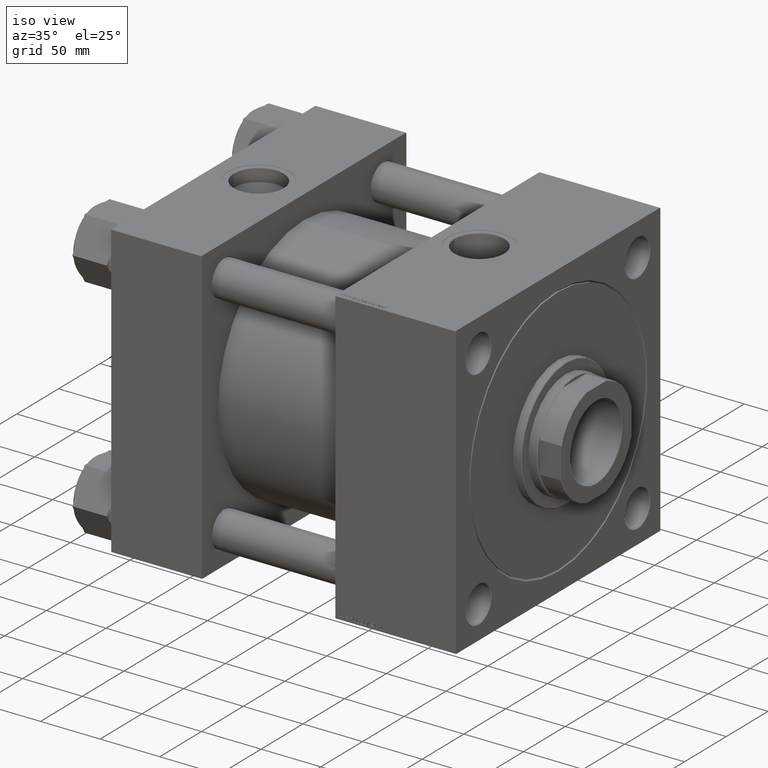
[diagram: clean part render]
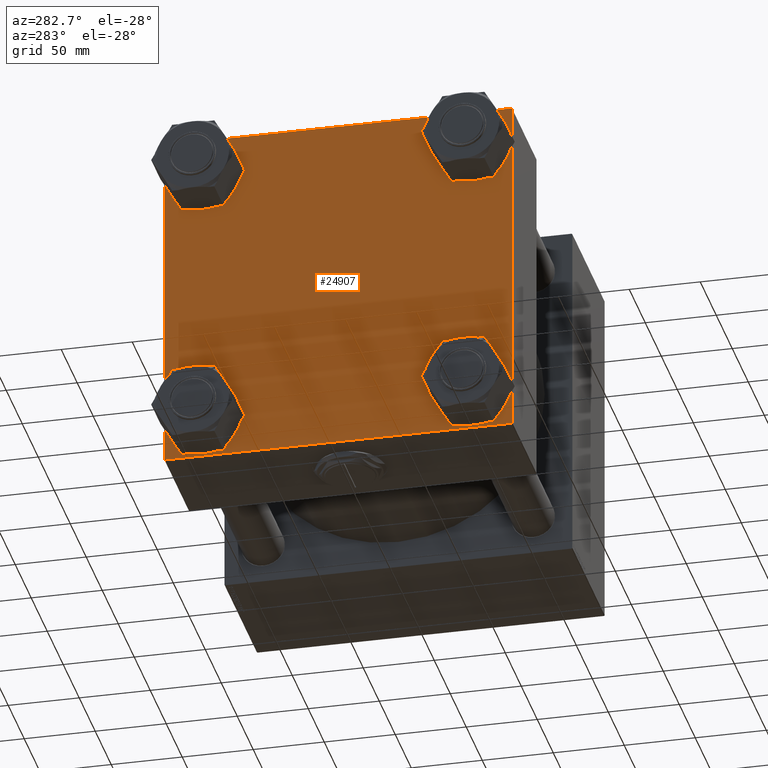
[diagram: tour spotlight — one face highlighted and labeled with its STEP entity id]
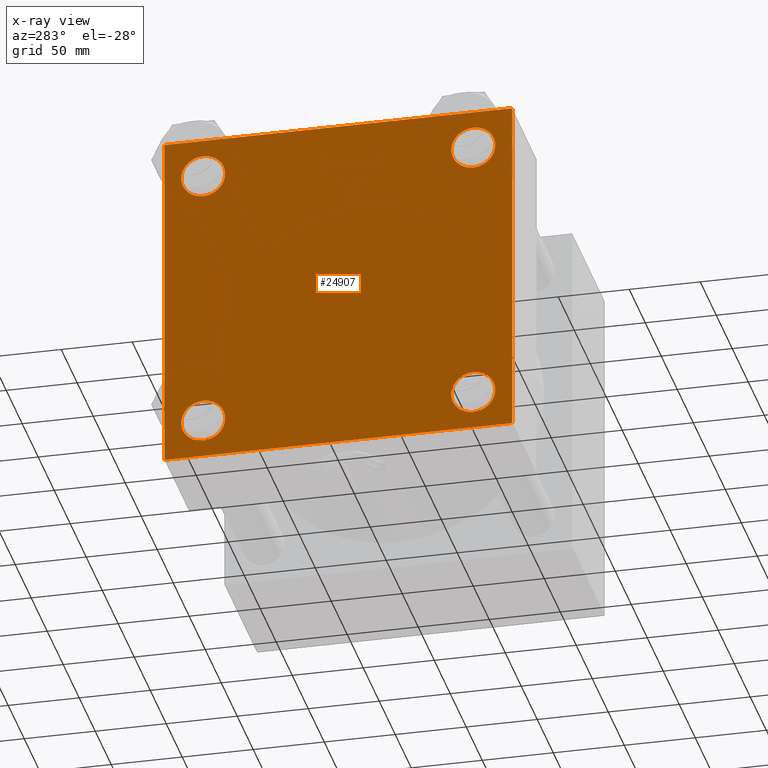
[diagram: x-ray of the same camera — body ghosted, this tour face saturated]
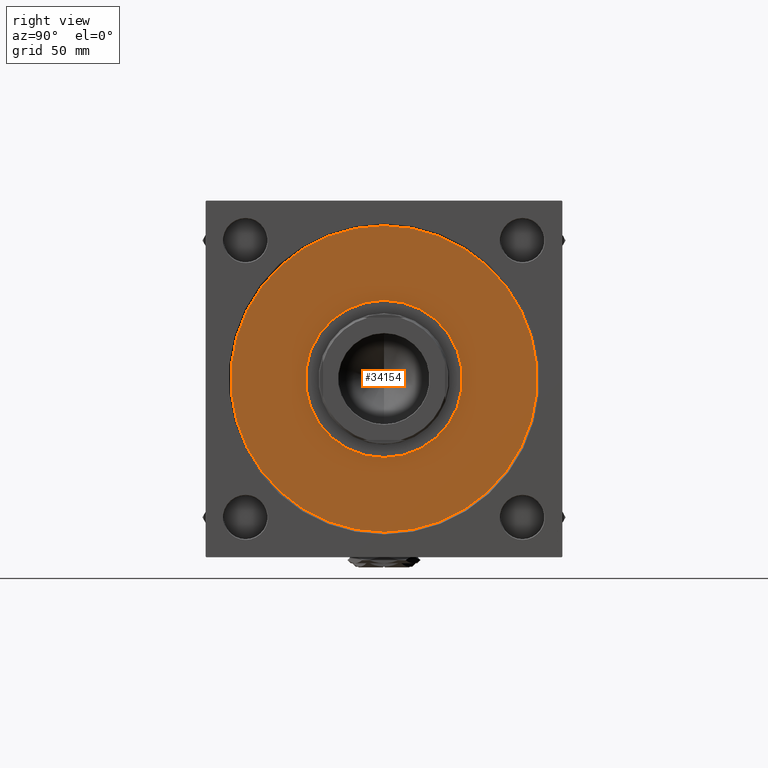
[diagram: tour spotlight — one face highlighted and labeled with its STEP entity id]
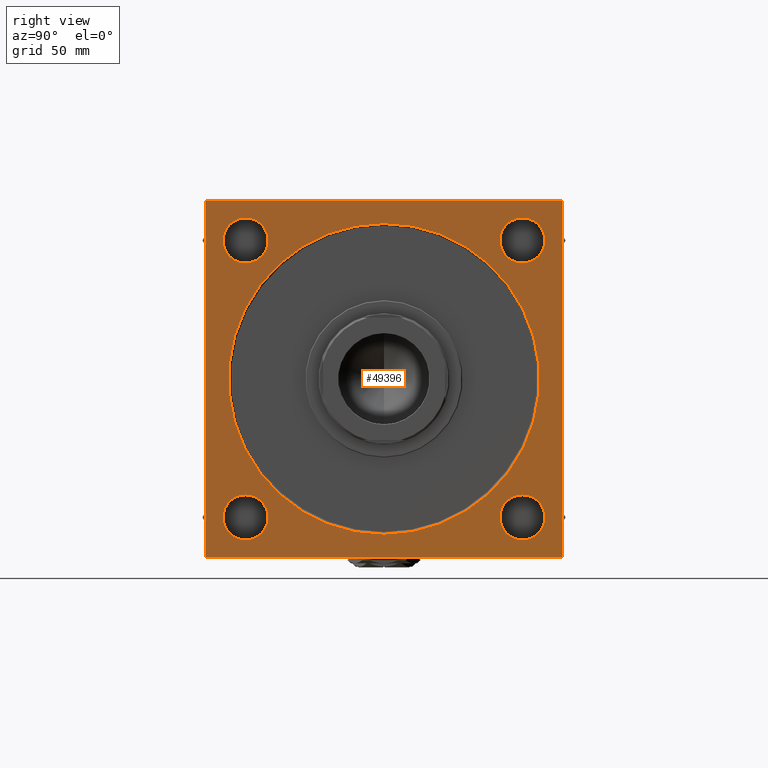
[diagram: tour spotlight — one face highlighted and labeled with its STEP entity id]
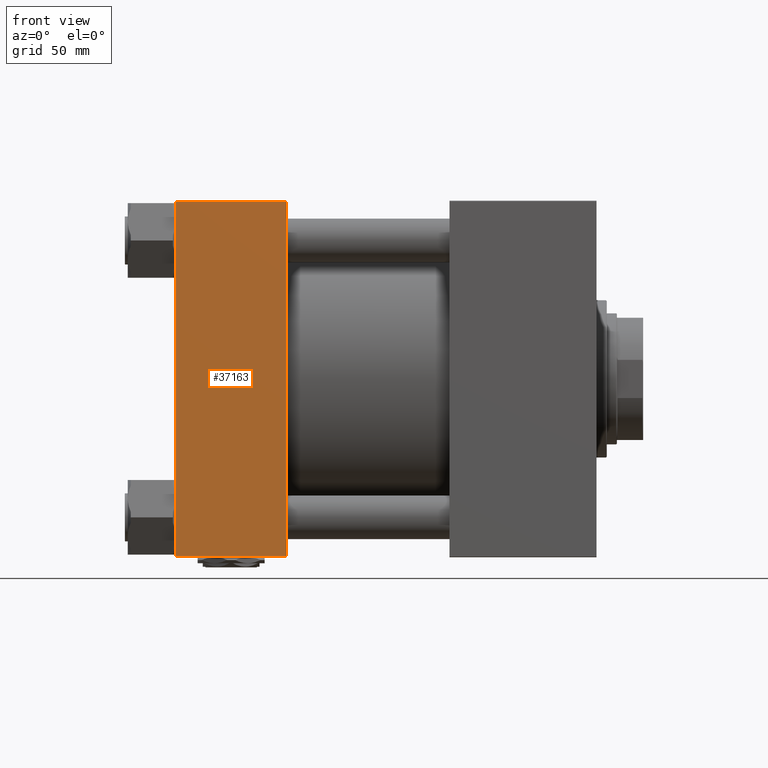
[diagram: tour spotlight — one face highlighted and labeled with its STEP entity id]
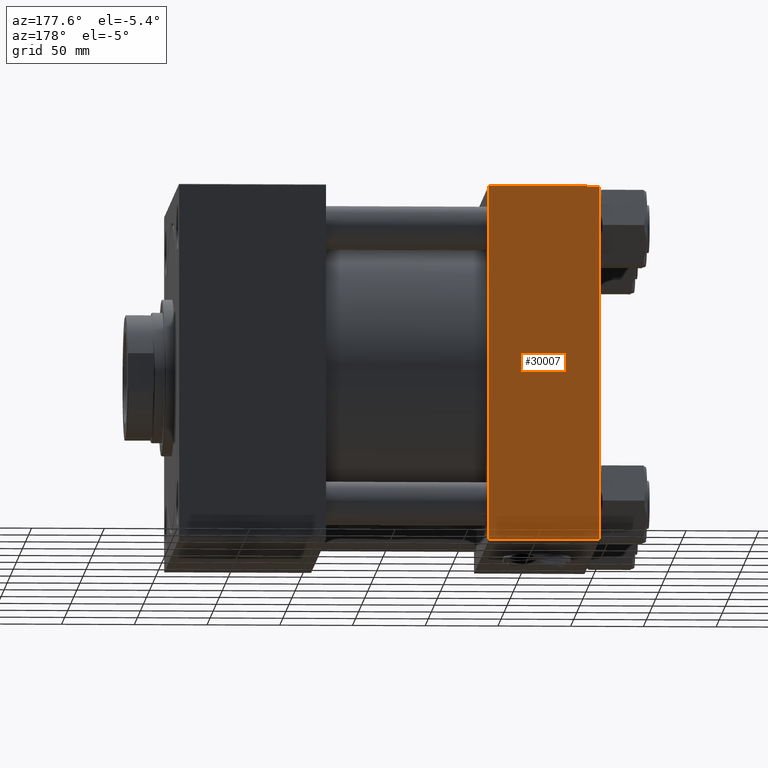
[diagram: tour spotlight — one face highlighted and labeled with its STEP entity id]
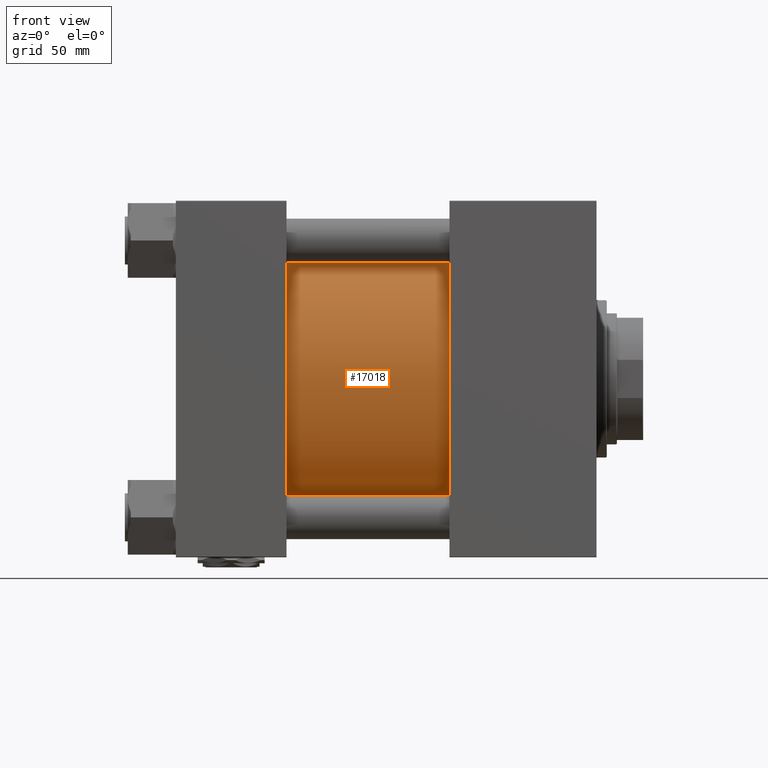
[diagram: tour spotlight — one face highlighted and labeled with its STEP entity id]
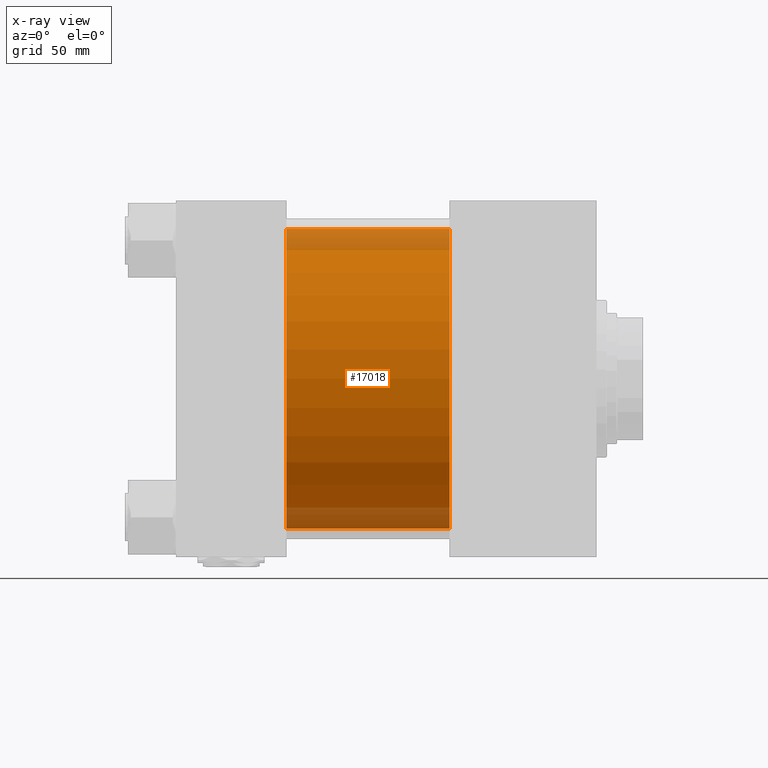
[diagram: x-ray of the same camera — body ghosted, this tour face saturated]
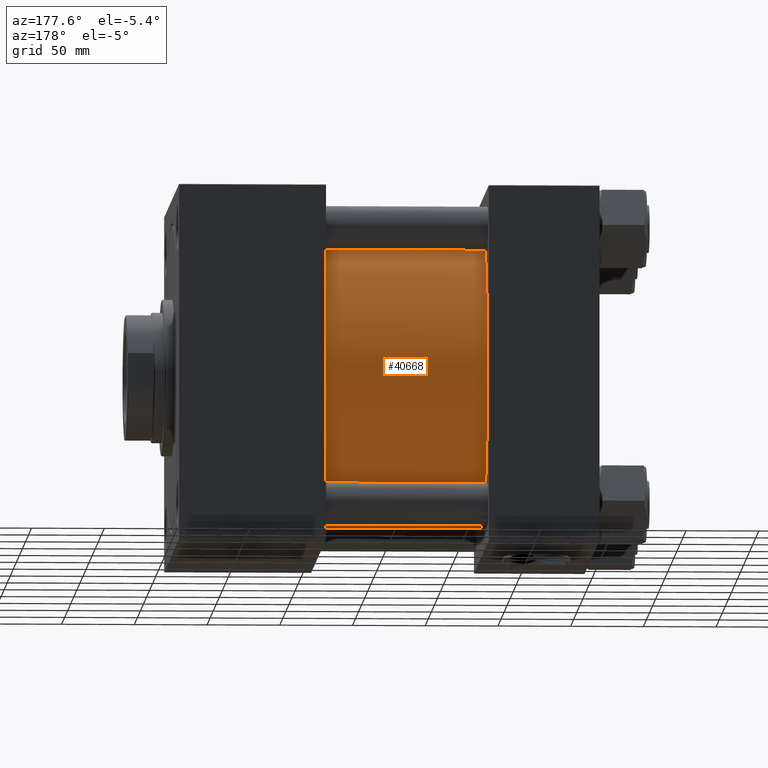
[diagram: tour spotlight — one face highlighted and labeled with its STEP entity id]
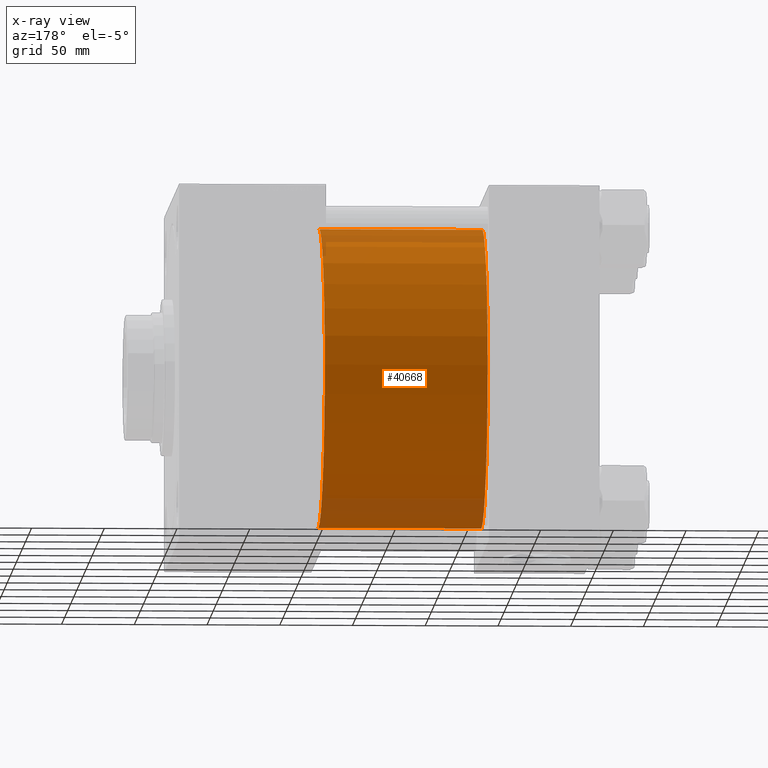
[diagram: x-ray of the same camera — body ghosted, this tour face saturated]
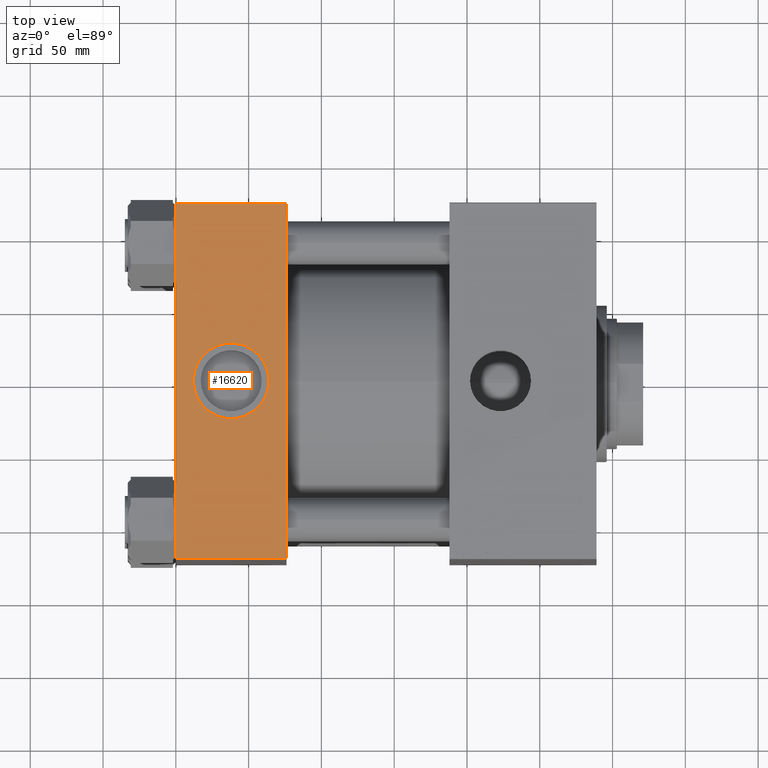
[diagram: tour spotlight — one face highlighted and labeled with its STEP entity id]
A machine part: a face-by-face anatomy tour. The part has 1250 B-rep faces; the first image is the clean iso view, then the 8 largest visible faces are spotlighted one at a time (largest first), each with its STEP entity span.

Face 1 — auxiliary view, entity #24907. An x-ray twin of the same camera follows (body ghosted, this face saturated) — the face is partly hidden behind the body. In plain terms, the highlighted planar face has unit normal (-1, 0, 0).
Definition (entity closure, byte-faithful):
#144 = CARTESIAN_POINT ( 'NONE',  ( 0.000000000000000000, 122.2500000000000000, 122.2500000000000000 ) ) ;
#779 = ORIENTED_EDGE ( 'NONE', *, *, #37102, .T. ) ;
#1491 = ORIENTED_EDGE ( 'NONE', *, *, #38173, .F. ) ;
#1576 = DIRECTION ( 'NONE',  ( 0.000000000000000000, 0.000000000000000000, 1.000000000000000000 ) ) ;
#2879 = VERTEX_POINT ( 'NONE', #37481 ) ;
#3141 = CARTESIAN_POINT ( 'NONE',  ( 0.000000000000000000, 122.2500000000067217, -122.2499999999931646 ) ) ;
#3627 = DIRECTION ( 'NONE',  ( 0.000000000000000000, 0.000000000000000000, 1.000000000000000000 ) ) ;
#3774 = ORIENTED_EDGE ( 'NONE', *, *, #25848, .T. ) ;
#4180 = PLANE ( 'NONE',  #47373 ) ;
#4560 = VERTEX_POINT ( 'NONE', #34816 ) ;
#4984 = VECTOR ( 'NONE', #41267, 999.9999999999998863 ) ;
#5258 = VERTEX_POINT ( 'NONE', #39675 ) ;
#5498 = CIRCLE ( 'NONE', #47961, 15.50000000000001421 ) ;
#5548 = CARTESIAN_POINT ( 'NONE',  ( 0.000000000000000000, -95.09999999999996589, -95.10000000000000853 ) ) ;
#5682 = ORIENTED_EDGE ( 'NONE', *, *, #36553, .T. ) ;
#5817 = VERTEX_POINT ( 'NONE', #10591 ) ;
#6185 = CARTESIAN_POINT ( 'NONE',  ( 0.000000000000000000, 122.5000000000000142, 122.5000000000000284 ) ) ;
#7110 = DIRECTION ( 'NONE',  ( -0.000000000000000000, -0.7071067811865081598, -0.7071067811865867636 ) ) ;
#7118 = VERTEX_POINT ( 'NONE', #17409 ) ;
#7381 = CARTESIAN_POINT ( 'NONE',  ( 0.000000000000000000, 95.09999999999999432, -79.59999999999996589 ) ) ;
#7396 = CARTESIAN_POINT ( 'NONE',  ( 0.000000000000000000, 95.09999999999999432, -95.09999999999998010 ) ) ;
#7906 = VERTEX_POINT ( 'NONE', #34477 ) ;
#7966 = EDGE_CURVE ( 'NONE', #7906, #32639, #34753, .T. ) ;
#8942 = EDGE_CURVE ( 'NONE', #5258, #36256, #19063, .T. ) ;
#9895 = AXIS2_PLACEMENT_3D ( 'NONE', #17594, #17854, #33286 ) ;
#10029 = CARTESIAN_POINT ( 'NONE',  ( 0.000000000000000000, -122.5000000000000000, -121.9999999999999289 ) ) ;
#10317 = DIRECTION ( 'NONE',  ( 1.000000000000000000, -0.000000000000000000, 0.000000000000000000 ) ) ;
#10424 = CIRCLE ( 'NONE', #35910, 15.50000000000001421 ) ;
#10591 = CARTESIAN_POINT ( 'NONE',  ( 0.000000000000000000, -95.09999999999996589, 79.59999999999999432 ) ) ;
#11378 = LINE ( 'NONE', #27060, #42810 ) ;
#11628 = FACE_OUTER_BOUND ( 'NONE', #39082, .T. ) ;
#12540 = VERTEX_POINT ( 'NONE', #30777 ) ;
#12545 = AXIS2_PLACEMENT_3D ( 'NONE', #37088, #16637, #3627 ) ;
#12878 = DIRECTION ( 'NONE',  ( 0.000000000000000000, 0.7071067811865474617, -0.7071067811865474617 ) ) ;
#13157 = CARTESIAN_POINT ( 'NONE',  ( 0.000000000000000000, -122.5000000000000000, 121.9999999999999858 ) ) ;
#13881 = EDGE_LOOP ( 'NONE', ( #19728, #50750 ) ) ;
#14192 = EDGE_CURVE ( 'NONE', #31408, #2879, #29246, .T. ) ;
#14806 = AXIS2_PLACEMENT_3D ( 'NONE', #31766, #31233, #47975 ) ;
#15661 = AXIS2_PLACEMENT_3D ( 'NONE', #27381, #31374, #39332 ) ;
#15874 = DIRECTION ( 'NONE',  ( -0.000000000000000000, 0.000000000000000000, 1.000000000000000000 ) ) ;
#15921 = CIRCLE ( 'NONE', #12545, 15.50000000000001421 ) ;
#16209 = VERTEX_POINT ( 'NONE', #49629 ) ;
#16345 = DIRECTION ( 'NONE',  ( 0.000000000000000000, -1.000000000000000000, -1.132880637372608740E-16 ) ) ;
#16604 = CARTESIAN_POINT ( 'NONE',  ( 0.000000000000000000, 95.09999999999999432, 110.5999999999999943 ) ) ;
#16606 = LINE ( 'NONE', #25348, #35132 ) ;
#16637 = DIRECTION ( 'NONE',  ( 1.000000000000000000, -0.000000000000000000, 0.000000000000000000 ) ) ;
#17409 = CARTESIAN_POINT ( 'NONE',  ( 0.000000000000000000, -95.09999999999996589, 110.6000000000000227 ) ) ;
#17594 = CARTESIAN_POINT ( 'NONE',  ( 0.000000000000000000, 95.09999999999999432, 95.09999999999998010 ) ) ;
#17854 = DIRECTION ( 'NONE',  ( 1.000000000000000000, -0.000000000000000000, 0.000000000000000000 ) ) ;
#17975 = ORIENTED_EDGE ( 'NONE', *, *, #14192, .T. ) ;
#19063 = CIRCLE ( 'NONE', #15661, 15.50000000000001421 ) ;
#19678 = EDGE_CURVE ( 'NONE', #7118, #5817, #15921, .T. ) ;
#19728 = ORIENTED_EDGE ( 'NONE', *, *, #19678, .T. ) ;
#20303 = ORIENTED_EDGE ( 'NONE', *, *, #23175, .T. ) ;
#21351 = CARTESIAN_POINT ( 'NONE',  ( -0.000000000000000000, -122.2499999999982947, 122.2500000000016911 ) ) ;
#21736 = VECTOR ( 'NONE', #22396, 1000.000000000000000 ) ;
#22028 = CARTESIAN_POINT ( 'NONE',  ( 0.000000000000000000, -95.09999999999996589, -79.59999999999999432 ) ) ;
#22295 = EDGE_LOOP ( 'NONE', ( #17975, #22941 ) ) ;
#22396 = DIRECTION ( 'NONE',  ( 0.000000000000000000, -1.000000000000000000, -1.699320956058913233E-16 ) ) ;
#22418 = VECTOR ( 'NONE', #12878, 1000.000000000000114 ) ;
#22941 = ORIENTED_EDGE ( 'NONE', *, *, #42724, .T. ) ;
#23175 = EDGE_CURVE ( 'NONE', #46281, #4560, #25583, .T. ) ;
#23775 = VERTEX_POINT ( 'NONE', #28409 ) ;
#24146 = VECTOR ( 'NONE', #48372, 1000.000000000000000 ) ;
#24368 = FACE_BOUND ( 'NONE', #31967, .T. ) ;
#24907 = ADVANCED_FACE ( 'NONE', ( #43762, #24368, #44547, #39789, #11628 ), #4180, .T. ) ;
#25348 = CARTESIAN_POINT ( 'NONE',  ( 0.000000000000000000, 122.5000000000000142, -122.4999999999999716 ) ) ;
#25583 = LINE ( 'NONE', #21351, #4984 ) ;
#25746 = ORIENTED_EDGE ( 'NONE', *, *, #26664, .T. ) ;
#25848 = EDGE_CURVE ( 'NONE', #36256, #5258, #42273, .T. ) ;
#26515 = DIRECTION ( 'NONE',  ( 0.000000000000000000, 0.000000000000000000, 1.000000000000000000 ) ) ;
#26664 = EDGE_CURVE ( 'NONE', #23775, #38062, #43164, .T. ) ;
#26792 = DIRECTION ( 'NONE',  ( 1.000000000000000000, -0.000000000000000000, 0.000000000000000000 ) ) ;
#27060 = CARTESIAN_POINT ( 'NONE',  ( 0.000000000000000000, -122.5000000000000000, 122.4999999999999858 ) ) ;
#27381 = CARTESIAN_POINT ( 'NONE',  ( 0.000000000000000000, 95.09999999999999432, -95.09999999999998010 ) ) ;
#27393 = EDGE_LOOP ( 'NONE', ( #3774, #41386 ) ) ;
#27916 = LINE ( 'NONE', #41161, #24146 ) ;
#28356 = VECTOR ( 'NONE', #7110, 1000.000000000000000 ) ;
#28409 = CARTESIAN_POINT ( 'NONE',  ( 0.000000000000000000, -95.09999999999996589, -110.6000000000000227 ) ) ;
#28648 = ORIENTED_EDGE ( 'NONE', *, *, #33246, .T. ) ;
#28933 = VERTEX_POINT ( 'NONE', #47500 ) ;
#29246 = CIRCLE ( 'NONE', #14806, 15.50000000000001421 ) ;
#30506 = CARTESIAN_POINT ( 'NONE',  ( 0.000000000000000000, -95.09999999999996589, -95.10000000000000853 ) ) ;
#30777 = CARTESIAN_POINT ( 'NONE',  ( 0.000000000000000000, 122.5000000000000142, 121.9999999999999716 ) ) ;
#30908 = VECTOR ( 'NONE', #51095, 1000.000000000000114 ) ;
#31233 = DIRECTION ( 'NONE',  ( 1.000000000000000000, -0.000000000000000000, 0.000000000000000000 ) ) ;
#31259 = AXIS2_PLACEMENT_3D ( 'NONE', #7396, #35831, #39536 ) ;
#31374 = DIRECTION ( 'NONE',  ( 1.000000000000000000, -0.000000000000000000, 0.000000000000000000 ) ) ;
#31408 = VERTEX_POINT ( 'NONE', #16604 ) ;
#31556 = DIRECTION ( 'NONE',  ( -1.000000000000000000, 0.000000000000000000, -0.000000000000000000 ) ) ;
#31766 = CARTESIAN_POINT ( 'NONE',  ( 0.000000000000000000, 95.09999999999999432, 95.09999999999998010 ) ) ;
#31967 = EDGE_LOOP ( 'NONE', ( #28648, #25746 ) ) ;
#32565 = CARTESIAN_POINT ( 'NONE',  ( 0.000000000000000000, -95.09999999999996589, 95.10000000000000853 ) ) ;
#32639 = VERTEX_POINT ( 'NONE', #39396 ) ;
#33246 = EDGE_CURVE ( 'NONE', #38062, #23775, #10424, .T. ) ;
#33286 = DIRECTION ( 'NONE',  ( 0.000000000000000000, 0.000000000000000000, 1.000000000000000000 ) ) ;
#34444 = ORIENTED_EDGE ( 'NONE', *, *, #40738, .F. ) ;
#34477 = CARTESIAN_POINT ( 'NONE',  ( 0.000000000000000000, 122.5000000000000142, -121.9999999999998579 ) ) ;
#34508 = CIRCLE ( 'NONE', #9895, 15.50000000000001421 ) ;
#34753 = LINE ( 'NONE', #3141, #28356 ) ;
#34816 = CARTESIAN_POINT ( 'NONE',  ( 0.000000000000000000, -121.9999999999999858, 122.4999999999999858 ) ) ;
#35132 = VECTOR ( 'NONE', #16345, 1000.000000000000000 ) ;
#35831 = DIRECTION ( 'NONE',  ( 1.000000000000000000, -0.000000000000000000, 0.000000000000000000 ) ) ;
#35910 = AXIS2_PLACEMENT_3D ( 'NONE', #30506, #10317, #26515 ) ;
#36256 = VERTEX_POINT ( 'NONE', #7381 ) ;
#36541 = EDGE_CURVE ( 'NONE', #32639, #16209, #16606, .T. ) ;
#36553 = EDGE_CURVE ( 'NONE', #28933, #12540, #45526, .T. ) ;
#36788 = EDGE_CURVE ( 'NONE', #16209, #39067, #39659, .T. ) ;
#36800 = ORIENTED_EDGE ( 'NONE', *, *, #36788, .T. ) ;
#37088 = CARTESIAN_POINT ( 'NONE',  ( 0.000000000000000000, -95.09999999999996589, 95.10000000000000853 ) ) ;
#37102 = EDGE_CURVE ( 'NONE', #12540, #7906, #27916, .T. ) ;
#37481 = CARTESIAN_POINT ( 'NONE',  ( 0.000000000000000000, 95.09999999999999432, 79.59999999999996589 ) ) ;
#38062 = VERTEX_POINT ( 'NONE', #22028 ) ;
#38173 = EDGE_CURVE ( 'NONE', #46281, #39067, #11378, .T. ) ;
#38436 = EDGE_CURVE ( 'NONE', #5817, #7118, #5498, .T. ) ;
#39014 = DIRECTION ( 'NONE',  ( 0.000000000000000000, 0.000000000000000000, -1.000000000000000000 ) ) ;
#39067 = VERTEX_POINT ( 'NONE', #10029 ) ;
#39082 = EDGE_LOOP ( 'NONE', ( #779, #48086, #43685, #36800, #1491, #20303, #34444, #5682 ) ) ;
#39332 = DIRECTION ( 'NONE',  ( 0.000000000000000000, 0.000000000000000000, 1.000000000000000000 ) ) ;
#39396 = CARTESIAN_POINT ( 'NONE',  ( 0.000000000000000000, 121.9999999999999574, -122.4999999999999716 ) ) ;
#39536 = DIRECTION ( 'NONE',  ( 0.000000000000000000, 0.000000000000000000, 1.000000000000000000 ) ) ;
#39659 = LINE ( 'NONE', #51903, #30908 ) ;
#39675 = CARTESIAN_POINT ( 'NONE',  ( 0.000000000000000000, 95.09999999999999432, -110.5999999999999943 ) ) ;
#39789 = FACE_BOUND ( 'NONE', #22295, .T. ) ;
#40014 = DIRECTION ( 'NONE',  ( 1.000000000000000000, -0.000000000000000000, 0.000000000000000000 ) ) ;
#40738 = EDGE_CURVE ( 'NONE', #28933, #4560, #42577, .T. ) ;
#41161 = CARTESIAN_POINT ( 'NONE',  ( 0.000000000000000000, 122.5000000000000142, 122.5000000000000284 ) ) ;
#41267 = DIRECTION ( 'NONE',  ( -0.000000000000000000, 0.7071067811865574537, 0.7071067811865376918 ) ) ;
#41386 = ORIENTED_EDGE ( 'NONE', *, *, #8942, .T. ) ;
#42273 = CIRCLE ( 'NONE', #31259, 15.50000000000001421 ) ;
#42577 = LINE ( 'NONE', #6185, #21736 ) ;
#42724 = EDGE_CURVE ( 'NONE', #2879, #31408, #34508, .T. ) ;
#42810 = VECTOR ( 'NONE', #39014, 1000.000000000000000 ) ;
#43164 = CIRCLE ( 'NONE', #47421, 15.50000000000001421 ) ;
#43685 = ORIENTED_EDGE ( 'NONE', *, *, #36541, .T. ) ;
#43762 = FACE_BOUND ( 'NONE', #13881, .T. ) ;
#44547 = FACE_BOUND ( 'NONE', #27393, .T. ) ;
#45043 = DIRECTION ( 'NONE',  ( 0.000000000000000000, 0.000000000000000000, 1.000000000000000000 ) ) ;
#45526 = LINE ( 'NONE', #144, #22418 ) ;
#46281 = VERTEX_POINT ( 'NONE', #13157 ) ;
#47373 = AXIS2_PLACEMENT_3D ( 'NONE', #51763, #31556, #15874 ) ;
#47421 = AXIS2_PLACEMENT_3D ( 'NONE', #5548, #26792, #1576 ) ;
#47500 = CARTESIAN_POINT ( 'NONE',  ( 0.000000000000000000, 121.9999999999999574, 122.5000000000000284 ) ) ;
#47961 = AXIS2_PLACEMENT_3D ( 'NONE', #32565, #40014, #45043 ) ;
#47975 = DIRECTION ( 'NONE',  ( 0.000000000000000000, 0.000000000000000000, 1.000000000000000000 ) ) ;
#48086 = ORIENTED_EDGE ( 'NONE', *, *, #7966, .T. ) ;
#48372 = DIRECTION ( 'NONE',  ( 0.000000000000000000, 0.000000000000000000, -1.000000000000000000 ) ) ;
#49629 = CARTESIAN_POINT ( 'NONE',  ( 0.000000000000000000, -121.9999999999999289, -122.5000000000000000 ) ) ;
#50750 = ORIENTED_EDGE ( 'NONE', *, *, #38436, .T. ) ;
#51095 = DIRECTION ( 'NONE',  ( 0.000000000000000000, -0.7071067811865474617, 0.7071067811865474617 ) ) ;
#51763 = CARTESIAN_POINT ( 'NONE',  ( 0.000000000000000000, 0.000000000000000000, 0.000000000000000000 ) ) ;
#51903 = CARTESIAN_POINT ( 'NONE',  ( 0.000000000000000000, -122.2499999999999574, -122.2499999999999574 ) ) ;

Face 2 — right view, entity #34154. In plain terms, the highlighted planar face has unit normal (1, 0, 0).
Definition (entity closure, byte-faithful):
#147 = DIRECTION ( 'NONE',  ( 1.000000000000000000, 0.000000000000000000, 0.000000000000000000 ) ) ;
#343 = DIRECTION ( 'NONE',  ( 1.000000000000000000, 0.000000000000000000, 0.000000000000000000 ) ) ;
#389 = FACE_OUTER_BOUND ( 'NONE', #7286, .T. ) ;
#1043 = CIRCLE ( 'NONE', #38382, 54.00000000000000000 ) ;
#2798 = AXIS2_PLACEMENT_3D ( 'NONE', #17108, #45007, #37305 ) ;
#3100 = CIRCLE ( 'NONE', #49786, 105.2499999999999858 ) ;
#3845 = DIRECTION ( 'NONE',  ( 1.000000000000000000, 0.000000000000000000, 0.000000000000000000 ) ) ;
#4145 = ORIENTED_EDGE ( 'NONE', *, *, #21521, .T. ) ;
#4950 = AXIS2_PLACEMENT_3D ( 'NONE', #42755, #35612, #6905 ) ;
#6905 = DIRECTION ( 'NONE',  ( 1.000000000000000000, 0.000000000000000000, 0.000000000000000000 ) ) ;
#7286 = EDGE_LOOP ( 'NONE', ( #4145, #24925 ) ) ;
#11502 = CARTESIAN_POINT ( 'NONE',  ( 0.000000000000000000, 0.000000000000000000, 28.69999999999999929 ) ) ;
#12375 = VERTEX_POINT ( 'NONE', #44648 ) ;
#12621 = CIRCLE ( 'NONE', #4950, 105.2499999999999858 ) ;
#13040 = VERTEX_POINT ( 'NONE', #42085 ) ;
#17108 = CARTESIAN_POINT ( 'NONE',  ( 0.000000000000000000, 0.000000000000000000, 28.69999999999999929 ) ) ;
#17656 = EDGE_CURVE ( 'NONE', #37275, #22125, #3100, .T. ) ;
#19525 = DIRECTION ( 'NONE',  ( 0.000000000000000000, 0.000000000000000000, 1.000000000000000000 ) ) ;
#21521 = EDGE_CURVE ( 'NONE', #22125, #37275, #12621, .T. ) ;
#22125 = VERTEX_POINT ( 'NONE', #38889 ) ;
#23731 = DIRECTION ( 'NONE',  ( 0.000000000000000000, 0.000000000000000000, 1.000000000000000000 ) ) ;
#24925 = ORIENTED_EDGE ( 'NONE', *, *, #17656, .T. ) ;
#25033 = ORIENTED_EDGE ( 'NONE', *, *, #40484, .F. ) ;
#28538 = CARTESIAN_POINT ( 'NONE',  ( 0.000000000000000000, 0.000000000000000000, 28.69999999999999929 ) ) ;
#28806 = PLANE ( 'NONE',  #2798 ) ;
#31030 = CARTESIAN_POINT ( 'NONE',  ( 105.2499999999999858, 1.288940756102589012E-14, 28.69999999999999929 ) ) ;
#31068 = CIRCLE ( 'NONE', #36172, 54.00000000000000000 ) ;
#32732 = EDGE_CURVE ( 'NONE', #12375, #13040, #1043, .T. ) ;
#34154 = ADVANCED_FACE ( 'NONE', ( #36527, #389 ), #28806, .T. ) ;
#35612 = DIRECTION ( 'NONE',  ( 0.000000000000000000, 0.000000000000000000, 1.000000000000000000 ) ) ;
#36172 = AXIS2_PLACEMENT_3D ( 'NONE', #39997, #36540, #147 ) ;
#36527 = FACE_BOUND ( 'NONE', #46217, .T. ) ;
#36540 = DIRECTION ( 'NONE',  ( 0.000000000000000000, 0.000000000000000000, 1.000000000000000000 ) ) ;
#37275 = VERTEX_POINT ( 'NONE', #31030 ) ;
#37305 = DIRECTION ( 'NONE',  ( 1.000000000000000000, 0.000000000000000000, -0.000000000000000000 ) ) ;
#38382 = AXIS2_PLACEMENT_3D ( 'NONE', #11502, #23731, #343 ) ;
#38889 = CARTESIAN_POINT ( 'NONE',  ( -105.2499999999999858, 0.000000000000000000, 28.69999999999999929 ) ) ;
#39997 = CARTESIAN_POINT ( 'NONE',  ( 0.000000000000000000, 0.000000000000000000, 28.69999999999999929 ) ) ;
#40484 = EDGE_CURVE ( 'NONE', #13040, #12375, #31068, .T. ) ;
#42085 = CARTESIAN_POINT ( 'NONE',  ( -54.00000000000000000, 0.000000000000000000, 28.69999999999999929 ) ) ;
#42755 = CARTESIAN_POINT ( 'NONE',  ( 0.000000000000000000, 0.000000000000000000, 28.69999999999999929 ) ) ;
#44648 = CARTESIAN_POINT ( 'NONE',  ( 54.00000000000000000, 6.613092715395707467E-15, 28.69999999999999929 ) ) ;
#44793 = ORIENTED_EDGE ( 'NONE', *, *, #32732, .F. ) ;
#45007 = DIRECTION ( 'NONE',  ( 0.000000000000000000, 0.000000000000000000, 1.000000000000000000 ) ) ;
#46217 = EDGE_LOOP ( 'NONE', ( #25033, #44793 ) ) ;
#49786 = AXIS2_PLACEMENT_3D ( 'NONE', #28538, #19525, #3845 ) ;

Face 3 — right view, entity #49396. In plain terms, the highlighted planar face has unit normal (-1, 0, 0).
Definition (entity closure, byte-faithful):
#207 = VERTEX_POINT ( 'NONE', #2353 ) ;
#451 = AXIS2_PLACEMENT_3D ( 'NONE', #9265, #38196, #37936 ) ;
#751 = CIRCLE ( 'NONE', #41430, 106.7500000000000000 ) ;
#1204 = VERTEX_POINT ( 'NONE', #40087 ) ;
#1475 = CARTESIAN_POINT ( 'NONE',  ( 289.0000000000000568, 95.09999999999999432, -95.09999999999998010 ) ) ;
#1503 = EDGE_CURVE ( 'NONE', #11802, #38972, #751, .T. ) ;
#1733 = DIRECTION ( 'NONE',  ( -1.000000000000000000, 0.000000000000000000, 0.000000000000000000 ) ) ;
#1763 = VERTEX_POINT ( 'NONE', #30061 ) ;
#1794 = DIRECTION ( 'NONE',  ( 0.000000000000000000, 0.000000000000000000, 1.000000000000000000 ) ) ;
#1967 = DIRECTION ( 'NONE',  ( -1.000000000000000000, 0.000000000000000000, 0.000000000000000000 ) ) ;
#2353 = CARTESIAN_POINT ( 'NONE',  ( 289.0000000000000568, 95.09999999999999432, 79.59999999999985221 ) ) ;
#2457 = CARTESIAN_POINT ( 'NONE',  ( 289.0000000000000568, -122.0000000000000568, 122.4999999999999858 ) ) ;
#2691 = VERTEX_POINT ( 'NONE', #2457 ) ;
#2703 = DIRECTION ( 'NONE',  ( 0.000000000000000000, 0.000000000000000000, 1.000000000000000000 ) ) ;
#2792 = VERTEX_POINT ( 'NONE', #44152 ) ;
#3081 = VERTEX_POINT ( 'NONE', #39048 ) ;
#3247 = AXIS2_PLACEMENT_3D ( 'NONE', #30599, #35119, #10947 ) ;
#3309 = ORIENTED_EDGE ( 'NONE', *, *, #20065, .T. ) ;
#3516 = FACE_BOUND ( 'NONE', #11654, .T. ) ;
#3957 = DIRECTION ( 'NONE',  ( 0.000000000000000000, -1.000000000000000000, -1.132880637372608986E-16 ) ) ;
#4017 = EDGE_LOOP ( 'NONE', ( #5996, #13851, #48843, #36960, #36097, #9809, #27651, #22735 ) ) ;
#4386 = CARTESIAN_POINT ( 'NONE',  ( 289.0000000000000568, -122.0000000000000000, -122.5000000000000853 ) ) ;
#4417 = CARTESIAN_POINT ( 'NONE',  ( 289.0000000000000568, -95.09999999999998010, -79.59999999999985221 ) ) ;
#5013 = DIRECTION ( 'NONE',  ( -1.000000000000000000, 0.000000000000000000, 0.000000000000000000 ) ) ;
#5278 = DIRECTION ( 'NONE',  ( 0.000000000000000000, 0.000000000000000000, 1.000000000000000000 ) ) ;
#5754 = VECTOR ( 'NONE', #45500, 1000.000000000000000 ) ;
#5996 = ORIENTED_EDGE ( 'NONE', *, *, #19401, .T. ) ;
#6068 = ORIENTED_EDGE ( 'NONE', *, *, #18378, .T. ) ;
#6183 = DIRECTION ( 'NONE',  ( 0.000000000000000000, -1.000000000000000000, -3.398641912117826466E-16 ) ) ;
#6274 = CARTESIAN_POINT ( 'NONE',  ( 289.0000000000000568, 121.9999999999999716, 122.5000000000000142 ) ) ;
#6483 = EDGE_CURVE ( 'NONE', #39580, #20009, #42671, .T. ) ;
#6568 = VECTOR ( 'NONE', #7481, 1000.000000000000000 ) ;
#6684 = CARTESIAN_POINT ( 'NONE',  ( 289.0000000000000568, -95.09999999999996589, 95.10000000000000853 ) ) ;
#6753 = EDGE_CURVE ( 'NONE', #14640, #2691, #27877, .T. ) ;
#7481 = DIRECTION ( 'NONE',  ( 0.000000000000000000, -5.664403186863042467E-17, -1.000000000000000000 ) ) ;
#7751 = LINE ( 'NONE', #19447, #6568 ) ;
#7835 = AXIS2_PLACEMENT_3D ( 'NONE', #50247, #25031, #9084 ) ;
#8047 = CARTESIAN_POINT ( 'NONE',  ( 289.0000000000000568, 121.9999999999999716, 122.5000000000000142 ) ) ;
#8098 = CIRCLE ( 'NONE', #451, 15.50000000000012434 ) ;
#8405 = ORIENTED_EDGE ( 'NONE', *, *, #34459, .T. ) ;
#8620 = EDGE_CURVE ( 'NONE', #3081, #36633, #30883, .T. ) ;
#9084 = DIRECTION ( 'NONE',  ( 0.000000000000000000, 0.000000000000000000, 1.000000000000000000 ) ) ;
#9265 = CARTESIAN_POINT ( 'NONE',  ( 289.0000000000000568, -95.09999999999996589, 95.10000000000000853 ) ) ;
#9285 = EDGE_LOOP ( 'NONE', ( #49045, #51487 ) ) ;
#9506 = DIRECTION ( 'NONE',  ( 0.000000000000000000, 0.000000000000000000, 1.000000000000000000 ) ) ;
#9623 = LINE ( 'NONE', #25578, #5754 ) ;
#9758 = CARTESIAN_POINT ( 'NONE',  ( 289.0000000000000568, 95.09999999999999432, -95.09999999999998010 ) ) ;
#9809 = ORIENTED_EDGE ( 'NONE', *, *, #48311, .T. ) ;
#9965 = CIRCLE ( 'NONE', #25152, 15.50000000000012434 ) ;
#10196 = VECTOR ( 'NONE', #15562, 1000.000000000000114 ) ;
#10253 = DIRECTION ( 'NONE',  ( 0.000000000000000000, 0.7071067811865671127, -0.7071067811865279218 ) ) ;
#10671 = VERTEX_POINT ( 'NONE', #45280 ) ;
#10947 = DIRECTION ( 'NONE',  ( 0.000000000000000000, 0.000000000000000000, 1.000000000000000000 ) ) ;
#11303 = LINE ( 'NONE', #43183, #10196 ) ;
#11654 = EDGE_LOOP ( 'NONE', ( #17362, #42388 ) ) ;
#11746 = CIRCLE ( 'NONE', #41424, 15.50000000000012434 ) ;
#11802 = VERTEX_POINT ( 'NONE', #21440 ) ;
#13851 = ORIENTED_EDGE ( 'NONE', *, *, #26070, .T. ) ;
#13942 = ORIENTED_EDGE ( 'NONE', *, *, #38895, .T. ) ;
#14180 = VERTEX_POINT ( 'NONE', #51972 ) ;
#14402 = FACE_BOUND ( 'NONE', #20442, .T. ) ;
#14640 = VERTEX_POINT ( 'NONE', #8047 ) ;
#14931 = FACE_OUTER_BOUND ( 'NONE', #4017, .T. ) ;
#15076 = DIRECTION ( 'NONE',  ( 0.000000000000000000, 0.000000000000000000, 1.000000000000000000 ) ) ;
#15562 = DIRECTION ( 'NONE',  ( -0.000000000000000000, -0.7071067811865474617, -0.7071067811865474617 ) ) ;
#17247 = DIRECTION ( 'NONE',  ( -1.000000000000000000, 0.000000000000000000, 0.000000000000000000 ) ) ;
#17362 = ORIENTED_EDGE ( 'NONE', *, *, #33648, .T. ) ;
#17650 = CARTESIAN_POINT ( 'NONE',  ( 289.0000000000000568, 0.000000000000000000, 0.000000000000000000 ) ) ;
#18056 = AXIS2_PLACEMENT_3D ( 'NONE', #6684, #39093, #2703 ) ;
#18378 = EDGE_CURVE ( 'NONE', #1763, #20880, #33642, .T. ) ;
#18400 = CARTESIAN_POINT ( 'NONE',  ( 289.0000000000000568, 122.4999999999999716, -122.5000000000000000 ) ) ;
#18713 = EDGE_LOOP ( 'NONE', ( #13942, #28518 ) ) ;
#19316 = VECTOR ( 'NONE', #30712, 1000.000000000000114 ) ;
#19379 = CARTESIAN_POINT ( 'NONE',  ( 289.0000000000000568, 122.4999999999999716, 122.5000000000000142 ) ) ;
#19401 = EDGE_CURVE ( 'NONE', #35872, #2792, #7751, .T. ) ;
#19447 = CARTESIAN_POINT ( 'NONE',  ( 289.0000000000000568, -122.5000000000000000, 122.4999999999999858 ) ) ;
#19671 = VERTEX_POINT ( 'NONE', #4417 ) ;
#20009 = VERTEX_POINT ( 'NONE', #28792 ) ;
#20065 = EDGE_CURVE ( 'NONE', #19671, #36891, #23537, .T. ) ;
#20442 = EDGE_LOOP ( 'NONE', ( #8405, #3309 ) ) ;
#20880 = VERTEX_POINT ( 'NONE', #48609 ) ;
#21440 = CARTESIAN_POINT ( 'NONE',  ( 289.0000000000000568, 1.307310458089799442E-14, 106.7500000000000000 ) ) ;
#21752 = EDGE_CURVE ( 'NONE', #20880, #1763, #11746, .T. ) ;
#21832 = ORIENTED_EDGE ( 'NONE', *, *, #21752, .T. ) ;
#22735 = ORIENTED_EDGE ( 'NONE', *, *, #30127, .T. ) ;
#23537 = CIRCLE ( 'NONE', #36292, 15.50000000000012434 ) ;
#24953 = CARTESIAN_POINT ( 'NONE',  ( 289.0000000000000568, 0.000000000000000000, -106.7500000000000000 ) ) ;
#25031 = DIRECTION ( 'NONE',  ( -1.000000000000000000, 0.000000000000000000, 0.000000000000000000 ) ) ;
#25152 = AXIS2_PLACEMENT_3D ( 'NONE', #36931, #17247, #5278 ) ;
#25578 = CARTESIAN_POINT ( 'NONE',  ( 289.0000000000000568, 122.4999999999999716, 122.5000000000000142 ) ) ;
#25665 = LINE ( 'NONE', #46379, #35521 ) ;
#26070 = EDGE_CURVE ( 'NONE', #2792, #36633, #25665, .T. ) ;
#26460 = LINE ( 'NONE', #6274, #19316 ) ;
#27294 = DIRECTION ( 'NONE',  ( -1.000000000000000000, 0.000000000000000000, 0.000000000000000000 ) ) ;
#27651 = ORIENTED_EDGE ( 'NONE', *, *, #6753, .T. ) ;
#27678 = PLANE ( 'NONE',  #3247 ) ;
#27877 = LINE ( 'NONE', #19379, #35952 ) ;
#28518 = ORIENTED_EDGE ( 'NONE', *, *, #6483, .T. ) ;
#28581 = AXIS2_PLACEMENT_3D ( 'NONE', #1475, #1733, #33111 ) ;
#28792 = CARTESIAN_POINT ( 'NONE',  ( 289.0000000000000568, -95.09999999999996589, 79.59999999999988063 ) ) ;
#29171 = CARTESIAN_POINT ( 'NONE',  ( 289.0000000000000568, 0.000000000000000000, 0.000000000000000000 ) ) ;
#30061 = CARTESIAN_POINT ( 'NONE',  ( 289.0000000000000568, 95.09999999999999432, -110.6000000000001080 ) ) ;
#30127 = EDGE_CURVE ( 'NONE', #2691, #35872, #11303, .T. ) ;
#30233 = EDGE_LOOP ( 'NONE', ( #6068, #21832 ) ) ;
#30599 = CARTESIAN_POINT ( 'NONE',  ( 289.0000000000000568, 0.000000000000000000, 0.000000000000000000 ) ) ;
#30712 = DIRECTION ( 'NONE',  ( 0.000000000000000000, -0.7071067811865474617, 0.7071067811865474617 ) ) ;
#30815 = CARTESIAN_POINT ( 'NONE',  ( 289.0000000000000568, 122.4999999999999716, -121.9999999999999858 ) ) ;
#30883 = LINE ( 'NONE', #18400, #47849 ) ;
#31130 = FACE_BOUND ( 'NONE', #18713, .T. ) ;
#32019 = EDGE_CURVE ( 'NONE', #3081, #14180, #35080, .T. ) ;
#32848 = EDGE_CURVE ( 'NONE', #10671, #207, #51996, .T. ) ;
#33111 = DIRECTION ( 'NONE',  ( 0.000000000000000000, 0.000000000000000000, 1.000000000000000000 ) ) ;
#33642 = CIRCLE ( 'NONE', #28581, 15.50000000000012434 ) ;
#33648 = EDGE_CURVE ( 'NONE', #38972, #11802, #35016, .T. ) ;
#34200 = CIRCLE ( 'NONE', #39309, 15.50000000000012434 ) ;
#34459 = EDGE_CURVE ( 'NONE', #36891, #19671, #34200, .T. ) ;
#35016 = CIRCLE ( 'NONE', #50298, 106.7500000000000000 ) ;
#35080 = LINE ( 'NONE', #30815, #42465 ) ;
#35119 = DIRECTION ( 'NONE',  ( -1.000000000000000000, 0.000000000000000000, 0.000000000000000000 ) ) ;
#35521 = VECTOR ( 'NONE', #10253, 1000.000000000000000 ) ;
#35872 = VERTEX_POINT ( 'NONE', #48755 ) ;
#35952 = VECTOR ( 'NONE', #3957, 1000.000000000000000 ) ;
#36097 = ORIENTED_EDGE ( 'NONE', *, *, #49339, .F. ) ;
#36251 = CARTESIAN_POINT ( 'NONE',  ( 289.0000000000000568, -95.09999999999998010, -95.09999999999998010 ) ) ;
#36292 = AXIS2_PLACEMENT_3D ( 'NONE', #36251, #36513, #52198 ) ;
#36513 = DIRECTION ( 'NONE',  ( -1.000000000000000000, 0.000000000000000000, 0.000000000000000000 ) ) ;
#36633 = VERTEX_POINT ( 'NONE', #4386 ) ;
#36891 = VERTEX_POINT ( 'NONE', #49472 ) ;
#36931 = CARTESIAN_POINT ( 'NONE',  ( 289.0000000000000568, 95.09999999999999432, 95.09999999999998010 ) ) ;
#36960 = ORIENTED_EDGE ( 'NONE', *, *, #32019, .T. ) ;
#37936 = DIRECTION ( 'NONE',  ( 0.000000000000000000, 0.000000000000000000, 1.000000000000000000 ) ) ;
#38005 = CARTESIAN_POINT ( 'NONE',  ( 289.0000000000000568, -95.09999999999996589, 110.6000000000001222 ) ) ;
#38196 = DIRECTION ( 'NONE',  ( -1.000000000000000000, 0.000000000000000000, 0.000000000000000000 ) ) ;
#38895 = EDGE_CURVE ( 'NONE', #20009, #39580, #8098, .T. ) ;
#38972 = VERTEX_POINT ( 'NONE', #24953 ) ;
#39048 = CARTESIAN_POINT ( 'NONE',  ( 289.0000000000000568, 121.9999999999999716, -122.5000000000000000 ) ) ;
#39093 = DIRECTION ( 'NONE',  ( -1.000000000000000000, 0.000000000000000000, 0.000000000000000000 ) ) ;
#39309 = AXIS2_PLACEMENT_3D ( 'NONE', #42956, #27294, #15076 ) ;
#39580 = VERTEX_POINT ( 'NONE', #38005 ) ;
#40087 = CARTESIAN_POINT ( 'NONE',  ( 289.0000000000000568, 122.4999999999999716, 122.0000000000000142 ) ) ;
#41400 = DIRECTION ( 'NONE',  ( -1.000000000000000000, 0.000000000000000000, 0.000000000000000000 ) ) ;
#41424 = AXIS2_PLACEMENT_3D ( 'NONE', #9758, #5013, #9506 ) ;
#41430 = AXIS2_PLACEMENT_3D ( 'NONE', #17650, #1967, #41582 ) ;
#41582 = DIRECTION ( 'NONE',  ( 0.000000000000000000, 0.000000000000000000, 1.000000000000000000 ) ) ;
#42388 = ORIENTED_EDGE ( 'NONE', *, *, #1503, .T. ) ;
#42465 = VECTOR ( 'NONE', #51296, 999.9999999999998863 ) ;
#42671 = CIRCLE ( 'NONE', #18056, 15.50000000000012434 ) ;
#42956 = CARTESIAN_POINT ( 'NONE',  ( 289.0000000000000568, -95.09999999999998010, -95.09999999999998010 ) ) ;
#43183 = CARTESIAN_POINT ( 'NONE',  ( 289.0000000000000568, -122.5000000000000000, 122.0000000000000426 ) ) ;
#43351 = FACE_BOUND ( 'NONE', #9285, .T. ) ;
#43874 = FACE_BOUND ( 'NONE', #30233, .T. ) ;
#44152 = CARTESIAN_POINT ( 'NONE',  ( 289.0000000000000568, -122.5000000000000142, -122.0000000000000995 ) ) ;
#44999 = EDGE_CURVE ( 'NONE', #207, #10671, #9965, .T. ) ;
#45280 = CARTESIAN_POINT ( 'NONE',  ( 289.0000000000000568, 95.09999999999999432, 110.6000000000001080 ) ) ;
#45500 = DIRECTION ( 'NONE',  ( 0.000000000000000000, 0.000000000000000000, -1.000000000000000000 ) ) ;
#46379 = CARTESIAN_POINT ( 'NONE',  ( 289.0000000000000568, -122.0000000000000000, -122.5000000000000853 ) ) ;
#47849 = VECTOR ( 'NONE', #6183, 1000.000000000000000 ) ;
#48311 = EDGE_CURVE ( 'NONE', #1204, #14640, #26460, .T. ) ;
#48609 = CARTESIAN_POINT ( 'NONE',  ( 289.0000000000000568, 95.09999999999999432, -79.59999999999985221 ) ) ;
#48755 = CARTESIAN_POINT ( 'NONE',  ( 289.0000000000000568, -122.5000000000000000, 122.0000000000000426 ) ) ;
#48843 = ORIENTED_EDGE ( 'NONE', *, *, #8620, .F. ) ;
#49045 = ORIENTED_EDGE ( 'NONE', *, *, #44999, .T. ) ;
#49339 = EDGE_CURVE ( 'NONE', #1204, #14180, #9623, .T. ) ;
#49396 = ADVANCED_FACE ( 'NONE', ( #43351, #31130, #14402, #43874, #3516, #14931 ), #27678, .F. ) ;
#49472 = CARTESIAN_POINT ( 'NONE',  ( 289.0000000000000568, -95.09999999999998010, -110.6000000000001080 ) ) ;
#50247 = CARTESIAN_POINT ( 'NONE',  ( 289.0000000000000568, 95.09999999999999432, 95.09999999999998010 ) ) ;
#50298 = AXIS2_PLACEMENT_3D ( 'NONE', #29171, #41400, #1794 ) ;
#51296 = DIRECTION ( 'NONE',  ( -0.000000000000000000, 0.7071067811865376918, 0.7071067811865574537 ) ) ;
#51487 = ORIENTED_EDGE ( 'NONE', *, *, #32848, .T. ) ;
#51972 = CARTESIAN_POINT ( 'NONE',  ( 289.0000000000000568, 122.4999999999999716, -121.9999999999999858 ) ) ;
#51996 = CIRCLE ( 'NONE', #7835, 15.50000000000012434 ) ;
#52198 = DIRECTION ( 'NONE',  ( 0.000000000000000000, 0.000000000000000000, 1.000000000000000000 ) ) ;

Face 4 — front view, entity #37163. In plain terms, the highlighted planar face has unit normal (0, 1, 0).
Definition (entity closure, byte-faithful):
#2416 = DIRECTION ( 'NONE',  ( 0.000000000000000000, 0.000000000000000000, -1.000000000000000000 ) ) ;
#6348 = ORIENTED_EDGE ( 'NONE', *, *, #38173, .T. ) ;
#8500 = CARTESIAN_POINT ( 'NONE',  ( 76.00000000000000000, -122.5000000000000000, 122.4999999999999858 ) ) ;
#10029 = CARTESIAN_POINT ( 'NONE',  ( 0.000000000000000000, -122.5000000000000000, -121.9999999999999289 ) ) ;
#10279 = EDGE_CURVE ( 'NONE', #26251, #18406, #46770, .T. ) ;
#11378 = LINE ( 'NONE', #27060, #42810 ) ;
#11395 = AXIS2_PLACEMENT_3D ( 'NONE', #8500, #16995, #40133 ) ;
#11578 = CARTESIAN_POINT ( 'NONE',  ( 76.00000000000000000, -122.5000000000000000, 121.9999999999999858 ) ) ;
#12629 = EDGE_LOOP ( 'NONE', ( #6348, #49727, #27900, #18819 ) ) ;
#13157 = CARTESIAN_POINT ( 'NONE',  ( 0.000000000000000000, -122.5000000000000000, 121.9999999999999858 ) ) ;
#15038 = LINE ( 'NONE', #51715, #39720 ) ;
#16995 = DIRECTION ( 'NONE',  ( -0.000000000000000000, 1.000000000000000000, 0.000000000000000000 ) ) ;
#18261 = EDGE_CURVE ( 'NONE', #26251, #46281, #28085, .T. ) ;
#18351 = VECTOR ( 'NONE', #40829, 1000.000000000000000 ) ;
#18406 = VERTEX_POINT ( 'NONE', #49335 ) ;
#18819 = ORIENTED_EDGE ( 'NONE', *, *, #18261, .T. ) ;
#20723 = FACE_OUTER_BOUND ( 'NONE', #12629, .T. ) ;
#21635 = VECTOR ( 'NONE', #2416, 1000.000000000000000 ) ;
#23270 = DIRECTION ( 'NONE',  ( 1.000000000000000000, 0.000000000000000000, 0.000000000000000000 ) ) ;
#26251 = VERTEX_POINT ( 'NONE', #11578 ) ;
#27060 = CARTESIAN_POINT ( 'NONE',  ( 0.000000000000000000, -122.5000000000000000, 122.4999999999999858 ) ) ;
#27382 = CARTESIAN_POINT ( 'NONE',  ( 76.00000000000000000, -122.5000000000000000, 122.4999999999999858 ) ) ;
#27900 = ORIENTED_EDGE ( 'NONE', *, *, #10279, .F. ) ;
#28085 = LINE ( 'NONE', #48278, #18351 ) ;
#36929 = PLANE ( 'NONE',  #11395 ) ;
#37163 = ADVANCED_FACE ( 'NONE', ( #20723 ), #36929, .F. ) ;
#38173 = EDGE_CURVE ( 'NONE', #46281, #39067, #11378, .T. ) ;
#39014 = DIRECTION ( 'NONE',  ( 0.000000000000000000, 0.000000000000000000, -1.000000000000000000 ) ) ;
#39067 = VERTEX_POINT ( 'NONE', #10029 ) ;
#39720 = VECTOR ( 'NONE', #23270, 1000.000000000000000 ) ;
#40133 = DIRECTION ( 'NONE',  ( 0.000000000000000000, -0.000000000000000000, 1.000000000000000000 ) ) ;
#40829 = DIRECTION ( 'NONE',  ( -1.000000000000000000, 0.000000000000000000, 0.000000000000000000 ) ) ;
#42810 = VECTOR ( 'NONE', #39014, 1000.000000000000000 ) ;
#46281 = VERTEX_POINT ( 'NONE', #13157 ) ;
#46770 = LINE ( 'NONE', #27382, #21635 ) ;
#48278 = CARTESIAN_POINT ( 'NONE',  ( 76.00000000000000000, -122.5000000000000000, 121.9999999999999858 ) ) ;
#49335 = CARTESIAN_POINT ( 'NONE',  ( 76.00000000000000000, -122.5000000000000000, -121.9999999999999289 ) ) ;
#49727 = ORIENTED_EDGE ( 'NONE', *, *, #49917, .T. ) ;
#49917 = EDGE_CURVE ( 'NONE', #39067, #18406, #15038, .T. ) ;
#51715 = CARTESIAN_POINT ( 'NONE',  ( 76.00000000000000000, -122.5000000000000000, -121.9999999999999289 ) ) ;

Face 5 — auxiliary view, entity #30007. In plain terms, the highlighted planar face has unit normal (0, 1, 0).
Definition (entity closure, byte-faithful):
#1756 = PLANE ( 'NONE',  #25454 ) ;
#3965 = EDGE_CURVE ( 'NONE', #20052, #17956, #4503, .T. ) ;
#4031 = ORIENTED_EDGE ( 'NONE', *, *, #37456, .T. ) ;
#4503 = LINE ( 'NONE', #48622, #26276 ) ;
#7906 = VERTEX_POINT ( 'NONE', #34477 ) ;
#11239 = ORIENTED_EDGE ( 'NONE', *, *, #37102, .F. ) ;
#11503 = LINE ( 'NONE', #15759, #18195 ) ;
#12215 = DIRECTION ( 'NONE',  ( 0.000000000000000000, 0.000000000000000000, -1.000000000000000000 ) ) ;
#12540 = VERTEX_POINT ( 'NONE', #30777 ) ;
#15139 = CARTESIAN_POINT ( 'NONE',  ( 76.00000000000000000, 122.5000000000000142, -121.9999999999998579 ) ) ;
#15759 = CARTESIAN_POINT ( 'NONE',  ( 76.00000000000000000, 122.5000000000000142, 121.9999999999999716 ) ) ;
#16671 = FACE_OUTER_BOUND ( 'NONE', #41373, .T. ) ;
#17949 = DIRECTION ( 'NONE',  ( -0.000000000000000000, 1.000000000000000000, 0.000000000000000000 ) ) ;
#17956 = VERTEX_POINT ( 'NONE', #48408 ) ;
#18195 = VECTOR ( 'NONE', #31969, 1000.000000000000000 ) ;
#20052 = VERTEX_POINT ( 'NONE', #48731 ) ;
#20736 = EDGE_CURVE ( 'NONE', #17956, #7906, #43018, .T. ) ;
#22211 = CARTESIAN_POINT ( 'NONE',  ( 76.00000000000000000, 122.5000000000000142, 122.5000000000000284 ) ) ;
#22416 = ORIENTED_EDGE ( 'NONE', *, *, #3965, .T. ) ;
#22844 = DIRECTION ( 'NONE',  ( -1.000000000000000000, 0.000000000000000000, 0.000000000000000000 ) ) ;
#24146 = VECTOR ( 'NONE', #48372, 1000.000000000000000 ) ;
#25454 = AXIS2_PLACEMENT_3D ( 'NONE', #22211, #17949, #34957 ) ;
#26276 = VECTOR ( 'NONE', #12215, 1000.000000000000000 ) ;
#27916 = LINE ( 'NONE', #41161, #24146 ) ;
#28691 = VECTOR ( 'NONE', #22844, 1000.000000000000000 ) ;
#30007 = ADVANCED_FACE ( 'NONE', ( #16671 ), #1756, .T. ) ;
#30777 = CARTESIAN_POINT ( 'NONE',  ( 0.000000000000000000, 122.5000000000000142, 121.9999999999999716 ) ) ;
#31969 = DIRECTION ( 'NONE',  ( 1.000000000000000000, 0.000000000000000000, 0.000000000000000000 ) ) ;
#34477 = CARTESIAN_POINT ( 'NONE',  ( 0.000000000000000000, 122.5000000000000142, -121.9999999999998579 ) ) ;
#34957 = DIRECTION ( 'NONE',  ( 0.000000000000000000, -0.000000000000000000, 1.000000000000000000 ) ) ;
#35852 = ORIENTED_EDGE ( 'NONE', *, *, #20736, .T. ) ;
#37102 = EDGE_CURVE ( 'NONE', #12540, #7906, #27916, .T. ) ;
#37456 = EDGE_CURVE ( 'NONE', #12540, #20052, #11503, .T. ) ;
#41161 = CARTESIAN_POINT ( 'NONE',  ( 0.000000000000000000, 122.5000000000000142, 122.5000000000000284 ) ) ;
#41373 = EDGE_LOOP ( 'NONE', ( #22416, #35852, #11239, #4031 ) ) ;
#43018 = LINE ( 'NONE', #15139, #28691 ) ;
#48372 = DIRECTION ( 'NONE',  ( 0.000000000000000000, 0.000000000000000000, -1.000000000000000000 ) ) ;
#48408 = CARTESIAN_POINT ( 'NONE',  ( 76.00000000000000000, 122.5000000000000142, -121.9999999999998579 ) ) ;
#48622 = CARTESIAN_POINT ( 'NONE',  ( 76.00000000000000000, 122.5000000000000142, 122.5000000000000284 ) ) ;
#48731 = CARTESIAN_POINT ( 'NONE',  ( 76.00000000000000000, 122.5000000000000142, 121.9999999999999716 ) ) ;

Face 6 — front view, entity #17018. An x-ray twin of the same camera follows (body ghosted, this face saturated) — the face is partly hidden behind the body. In plain terms, the highlighted cylindrical surface (partial cylindrical patch) has radius 103 mm, axis along (-1, -0, -0).
Definition (entity closure, byte-faithful):
#596 = DIRECTION ( 'NONE',  ( 1.000000000000000000, -0.000000000000000000, 0.000000000000000000 ) ) ;
#825 = LINE ( 'NONE', #41190, #2448 ) ;
#1331 = EDGE_CURVE ( 'NONE', #48017, #41096, #21976, .T. ) ;
#2185 = EDGE_CURVE ( 'NONE', #45364, #38349, #825, .T. ) ;
#2448 = VECTOR ( 'NONE', #17024, 1000.000000000000000 ) ;
#3439 = ORIENTED_EDGE ( 'NONE', *, *, #7769, .T. ) ;
#6008 = CARTESIAN_POINT ( 'NONE',  ( 76.00000000000000000, -2.602085213965210642E-15, 103.0000000000000000 ) ) ;
#6594 = CARTESIAN_POINT ( 'NONE',  ( 76.00000000000000000, 1.001177681725252697E-14, -103.0000000000000000 ) ) ;
#7769 = EDGE_CURVE ( 'NONE', #38349, #41096, #22348, .T. ) ;
#9071 = CARTESIAN_POINT ( 'NONE',  ( 76.00000000000000000, -2.602085213965210642E-15, 0.000000000000000000 ) ) ;
#9493 = DIRECTION ( 'NONE',  ( 0.000000000000000000, 0.000000000000000000, 1.000000000000000000 ) ) ;
#10011 = CARTESIAN_POINT ( 'NONE',  ( 188.0000000000000000, -2.602085213965210642E-15, 0.000000000000000000 ) ) ;
#11048 = CARTESIAN_POINT ( 'NONE',  ( 188.0000000000000000, -2.602085213965210642E-15, 103.0000000000000000 ) ) ;
#11630 = AXIS2_PLACEMENT_3D ( 'NONE', #37807, #45513, #41273 ) ;
#13000 = ORIENTED_EDGE ( 'NONE', *, *, #2185, .T. ) ;
#13998 = CYLINDRICAL_SURFACE ( 'NONE', #39532, 103.0000000000000000 ) ;
#17018 = ADVANCED_FACE ( 'NONE', ( #33411 ), #13998, .T. ) ;
#17024 = DIRECTION ( 'NONE',  ( -1.000000000000000000, -0.000000000000000000, -0.000000000000000000 ) ) ;
#18720 = EDGE_CURVE ( 'NONE', #45364, #48017, #26895, .T. ) ;
#21976 = LINE ( 'NONE', #26202, #34635 ) ;
#22348 = CIRCLE ( 'NONE', #52084, 103.0000000000000000 ) ;
#22886 = CARTESIAN_POINT ( 'NONE',  ( 188.0000000000000000, 1.001177681725252697E-14, -103.0000000000000000 ) ) ;
#26202 = CARTESIAN_POINT ( 'NONE',  ( 188.0000000000000000, 1.001177681725252697E-14, -103.0000000000000000 ) ) ;
#26895 = CIRCLE ( 'NONE', #11630, 103.0000000000000000 ) ;
#29165 = DIRECTION ( 'NONE',  ( -1.000000000000000000, -0.000000000000000000, -0.000000000000000000 ) ) ;
#33411 = FACE_OUTER_BOUND ( 'NONE', #46536, .T. ) ;
#34635 = VECTOR ( 'NONE', #37908, 1000.000000000000000 ) ;
#37807 = CARTESIAN_POINT ( 'NONE',  ( 188.0000000000000000, -2.602085213965210642E-15, 0.000000000000000000 ) ) ;
#37908 = DIRECTION ( 'NONE',  ( -1.000000000000000000, -0.000000000000000000, -0.000000000000000000 ) ) ;
#38349 = VERTEX_POINT ( 'NONE', #6008 ) ;
#38561 = ORIENTED_EDGE ( 'NONE', *, *, #1331, .F. ) ;
#39532 = AXIS2_PLACEMENT_3D ( 'NONE', #10011, #29165, #9493 ) ;
#40961 = DIRECTION ( 'NONE',  ( 0.000000000000000000, 0.000000000000000000, 1.000000000000000000 ) ) ;
#41036 = ORIENTED_EDGE ( 'NONE', *, *, #18720, .F. ) ;
#41096 = VERTEX_POINT ( 'NONE', #6594 ) ;
#41190 = CARTESIAN_POINT ( 'NONE',  ( 188.0000000000000000, -2.602085213965210642E-15, 103.0000000000000000 ) ) ;
#41273 = DIRECTION ( 'NONE',  ( 0.000000000000000000, 0.000000000000000000, -1.000000000000000000 ) ) ;
#45364 = VERTEX_POINT ( 'NONE', #11048 ) ;
#45513 = DIRECTION ( 'NONE',  ( 1.000000000000000000, 0.000000000000000000, 0.000000000000000000 ) ) ;
#46536 = EDGE_LOOP ( 'NONE', ( #38561, #41036, #13000, #3439 ) ) ;
#48017 = VERTEX_POINT ( 'NONE', #22886 ) ;
#52084 = AXIS2_PLACEMENT_3D ( 'NONE', #9071, #596, #40961 ) ;

Face 7 — auxiliary view, entity #40668. An x-ray twin of the same camera follows (body ghosted, this face saturated) — the face is partly hidden behind the body. In plain terms, the highlighted cylindrical surface (partial cylindrical patch) has radius 103 mm, axis along (-1, -0, -0).
Definition (entity closure, byte-faithful):
#40 = DIRECTION ( 'NONE',  ( 0.000000000000000000, 0.000000000000000000, 1.000000000000000000 ) ) ;
#575 = ORIENTED_EDGE ( 'NONE', *, *, #46991, .T. ) ;
#825 = LINE ( 'NONE', #41190, #2448 ) ;
#1331 = EDGE_CURVE ( 'NONE', #48017, #41096, #21976, .T. ) ;
#2185 = EDGE_CURVE ( 'NONE', #45364, #38349, #825, .T. ) ;
#2448 = VECTOR ( 'NONE', #17024, 1000.000000000000000 ) ;
#4868 = AXIS2_PLACEMENT_3D ( 'NONE', #16500, #32696, #40 ) ;
#5113 = ORIENTED_EDGE ( 'NONE', *, *, #32551, .F. ) ;
#6008 = CARTESIAN_POINT ( 'NONE',  ( 76.00000000000000000, -2.602085213965210642E-15, 103.0000000000000000 ) ) ;
#6594 = CARTESIAN_POINT ( 'NONE',  ( 76.00000000000000000, 1.001177681725252697E-14, -103.0000000000000000 ) ) ;
#6982 = DIRECTION ( 'NONE',  ( -1.000000000000000000, -0.000000000000000000, -0.000000000000000000 ) ) ;
#11048 = CARTESIAN_POINT ( 'NONE',  ( 188.0000000000000000, -2.602085213965210642E-15, 103.0000000000000000 ) ) ;
#12102 = EDGE_LOOP ( 'NONE', ( #5113, #48992, #575, #35980 ) ) ;
#14164 = CARTESIAN_POINT ( 'NONE',  ( 188.0000000000000000, -2.602085213965210642E-15, 0.000000000000000000 ) ) ;
#15910 = CIRCLE ( 'NONE', #4868, 103.0000000000000000 ) ;
#16500 = CARTESIAN_POINT ( 'NONE',  ( 76.00000000000000000, -2.602085213965210642E-15, 0.000000000000000000 ) ) ;
#17024 = DIRECTION ( 'NONE',  ( -1.000000000000000000, -0.000000000000000000, -0.000000000000000000 ) ) ;
#18401 = CYLINDRICAL_SURFACE ( 'NONE', #48882, 103.0000000000000000 ) ;
#21976 = LINE ( 'NONE', #26202, #34635 ) ;
#22668 = DIRECTION ( 'NONE',  ( 0.000000000000000000, 0.000000000000000000, 1.000000000000000000 ) ) ;
#22886 = CARTESIAN_POINT ( 'NONE',  ( 188.0000000000000000, 1.001177681725252697E-14, -103.0000000000000000 ) ) ;
#26202 = CARTESIAN_POINT ( 'NONE',  ( 188.0000000000000000, 1.001177681725252697E-14, -103.0000000000000000 ) ) ;
#27364 = AXIS2_PLACEMENT_3D ( 'NONE', #41558, #49294, #38085 ) ;
#32551 = EDGE_CURVE ( 'NONE', #48017, #45364, #46836, .T. ) ;
#32696 = DIRECTION ( 'NONE',  ( 1.000000000000000000, -0.000000000000000000, 0.000000000000000000 ) ) ;
#34635 = VECTOR ( 'NONE', #37908, 1000.000000000000000 ) ;
#35980 = ORIENTED_EDGE ( 'NONE', *, *, #2185, .F. ) ;
#37908 = DIRECTION ( 'NONE',  ( -1.000000000000000000, -0.000000000000000000, -0.000000000000000000 ) ) ;
#38085 = DIRECTION ( 'NONE',  ( 0.000000000000000000, 0.000000000000000000, -1.000000000000000000 ) ) ;
#38349 = VERTEX_POINT ( 'NONE', #6008 ) ;
#40668 = ADVANCED_FACE ( 'NONE', ( #50307 ), #18401, .T. ) ;
#41096 = VERTEX_POINT ( 'NONE', #6594 ) ;
#41190 = CARTESIAN_POINT ( 'NONE',  ( 188.0000000000000000, -2.602085213965210642E-15, 103.0000000000000000 ) ) ;
#41558 = CARTESIAN_POINT ( 'NONE',  ( 188.0000000000000000, -2.602085213965210642E-15, 0.000000000000000000 ) ) ;
#45364 = VERTEX_POINT ( 'NONE', #11048 ) ;
#46836 = CIRCLE ( 'NONE', #27364, 103.0000000000000000 ) ;
#46991 = EDGE_CURVE ( 'NONE', #41096, #38349, #15910, .T. ) ;
#48017 = VERTEX_POINT ( 'NONE', #22886 ) ;
#48882 = AXIS2_PLACEMENT_3D ( 'NONE', #14164, #6982, #22668 ) ;
#48992 = ORIENTED_EDGE ( 'NONE', *, *, #1331, .T. ) ;
#49294 = DIRECTION ( 'NONE',  ( 1.000000000000000000, 0.000000000000000000, 0.000000000000000000 ) ) ;
#50307 = FACE_OUTER_BOUND ( 'NONE', #12102, .T. ) ;

Face 8 — top view, entity #16620. In plain terms, the highlighted planar face has unit normal (0, 0, -1).
Definition (entity closure, byte-faithful):
#459 = DIRECTION ( 'NONE',  ( -1.000000000000000000, 0.000000000000000000, 0.000000000000000000 ) ) ;
#614 = VERTEX_POINT ( 'NONE', #14513 ) ;
#1396 = EDGE_LOOP ( 'NONE', ( #28750, #6386 ) ) ;
#2969 = CARTESIAN_POINT ( 'NONE',  ( 64.00000000000000000, -2.255140518769849538E-14, 122.5000000000000000 ) ) ;
#3005 = DIRECTION ( 'NONE',  ( 0.000000000000000000, 0.000000000000000000, 1.000000000000000000 ) ) ;
#4437 = CARTESIAN_POINT ( 'NONE',  ( 0.000000000000000000, 121.9999999999999574, 122.5000000000000284 ) ) ;
#4541 = FACE_BOUND ( 'NONE', #1396, .T. ) ;
#4560 = VERTEX_POINT ( 'NONE', #34816 ) ;
#4974 = EDGE_CURVE ( 'NONE', #16551, #614, #19757, .T. ) ;
#6157 = CARTESIAN_POINT ( 'NONE',  ( 76.00000000000000000, 121.9999999999999574, 122.5000000000000284 ) ) ;
#6185 = CARTESIAN_POINT ( 'NONE',  ( 0.000000000000000000, 122.5000000000000142, 122.5000000000000284 ) ) ;
#6386 = ORIENTED_EDGE ( 'NONE', *, *, #13376, .F. ) ;
#7876 = AXIS2_PLACEMENT_3D ( 'NONE', #19866, #52282, #20399 ) ;
#11732 = CARTESIAN_POINT ( 'NONE',  ( 76.00000000000000000, 122.5000000000000142, 122.5000000000000284 ) ) ;
#12254 = DIRECTION ( 'NONE',  ( 0.000000000000000000, 1.000000000000000000, 1.699320956058913233E-16 ) ) ;
#12773 = VERTEX_POINT ( 'NONE', #29674 ) ;
#13376 = EDGE_CURVE ( 'NONE', #614, #16551, #28397, .T. ) ;
#13995 = VECTOR ( 'NONE', #459, 1000.000000000000000 ) ;
#14513 = CARTESIAN_POINT ( 'NONE',  ( 11.99999999999998934, -1.936732350991537522E-14, 122.5000000000000000 ) ) ;
#14609 = ORIENTED_EDGE ( 'NONE', *, *, #46557, .F. ) ;
#15487 = CARTESIAN_POINT ( 'NONE',  ( 38.00000000000000000, -2.255140518769849538E-14, 122.5000000000000000 ) ) ;
#15514 = DIRECTION ( 'NONE',  ( 0.000000000000000000, -1.000000000000000000, -1.699320956058913233E-16 ) ) ;
#15981 = PLANE ( 'NONE',  #28509 ) ;
#16113 = ORIENTED_EDGE ( 'NONE', *, *, #39209, .T. ) ;
#16551 = VERTEX_POINT ( 'NONE', #2969 ) ;
#16620 = ADVANCED_FACE ( 'NONE', ( #4541, #20750 ), #15981, .F. ) ;
#18956 = LINE ( 'NONE', #19504, #50626 ) ;
#19504 = CARTESIAN_POINT ( 'NONE',  ( 76.00000000000000000, 122.5000000000000142, 122.5000000000000284 ) ) ;
#19757 = CIRCLE ( 'NONE', #7876, 26.00000000000000355 ) ;
#19866 = CARTESIAN_POINT ( 'NONE',  ( 38.00000000000000000, -2.255140518769849538E-14, 122.5000000000000000 ) ) ;
#19911 = EDGE_LOOP ( 'NONE', ( #31668, #46329, #14609, #16113 ) ) ;
#20279 = VERTEX_POINT ( 'NONE', #6157 ) ;
#20399 = DIRECTION ( 'NONE',  ( 1.000000000000000000, 0.000000000000000000, 0.000000000000000000 ) ) ;
#20750 = FACE_OUTER_BOUND ( 'NONE', #19911, .T. ) ;
#21736 = VECTOR ( 'NONE', #22396, 1000.000000000000000 ) ;
#21802 = LINE ( 'NONE', #37998, #26234 ) ;
#22396 = DIRECTION ( 'NONE',  ( 0.000000000000000000, -1.000000000000000000, -1.699320956058913233E-16 ) ) ;
#24530 = EDGE_CURVE ( 'NONE', #4560, #12773, #21802, .T. ) ;
#24634 = LINE ( 'NONE', #4437, #13995 ) ;
#26234 = VECTOR ( 'NONE', #34018, 1000.000000000000000 ) ;
#27940 = DIRECTION ( 'NONE',  ( 0.000000000000000000, 1.699320956058913233E-16, -1.000000000000000000 ) ) ;
#28397 = CIRCLE ( 'NONE', #49640, 26.00000000000000355 ) ;
#28509 = AXIS2_PLACEMENT_3D ( 'NONE', #11732, #27940, #12254 ) ;
#28750 = ORIENTED_EDGE ( 'NONE', *, *, #4974, .F. ) ;
#28933 = VERTEX_POINT ( 'NONE', #47500 ) ;
#29674 = CARTESIAN_POINT ( 'NONE',  ( 76.00000000000000000, -121.9999999999999858, 122.4999999999999858 ) ) ;
#31668 = ORIENTED_EDGE ( 'NONE', *, *, #40738, .T. ) ;
#34018 = DIRECTION ( 'NONE',  ( 1.000000000000000000, 0.000000000000000000, 0.000000000000000000 ) ) ;
#34816 = CARTESIAN_POINT ( 'NONE',  ( 0.000000000000000000, -121.9999999999999858, 122.4999999999999858 ) ) ;
#37998 = CARTESIAN_POINT ( 'NONE',  ( 76.00000000000000000, -121.9999999999999858, 122.4999999999999858 ) ) ;
#39209 = EDGE_CURVE ( 'NONE', #20279, #28933, #24634, .T. ) ;
#40738 = EDGE_CURVE ( 'NONE', #28933, #4560, #42577, .T. ) ;
#42577 = LINE ( 'NONE', #6185, #21736 ) ;
#43633 = DIRECTION ( 'NONE',  ( 1.000000000000000000, 0.000000000000000000, 0.000000000000000000 ) ) ;
#46329 = ORIENTED_EDGE ( 'NONE', *, *, #24530, .T. ) ;
#46557 = EDGE_CURVE ( 'NONE', #20279, #12773, #18956, .T. ) ;
#47500 = CARTESIAN_POINT ( 'NONE',  ( 0.000000000000000000, 121.9999999999999574, 122.5000000000000284 ) ) ;
#49640 = AXIS2_PLACEMENT_3D ( 'NONE', #15487, #3005, #43633 ) ;
#50626 = VECTOR ( 'NONE', #15514, 1000.000000000000000 ) ;
#52282 = DIRECTION ( 'NONE',  ( 0.000000000000000000, 0.000000000000000000, 1.000000000000000000 ) ) ;